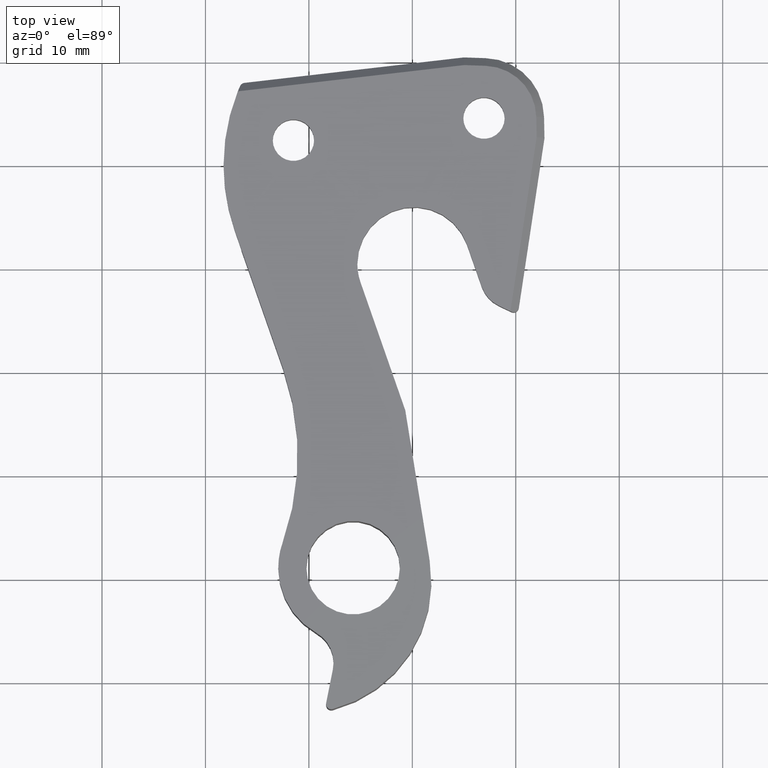
[diagram: clean part render]
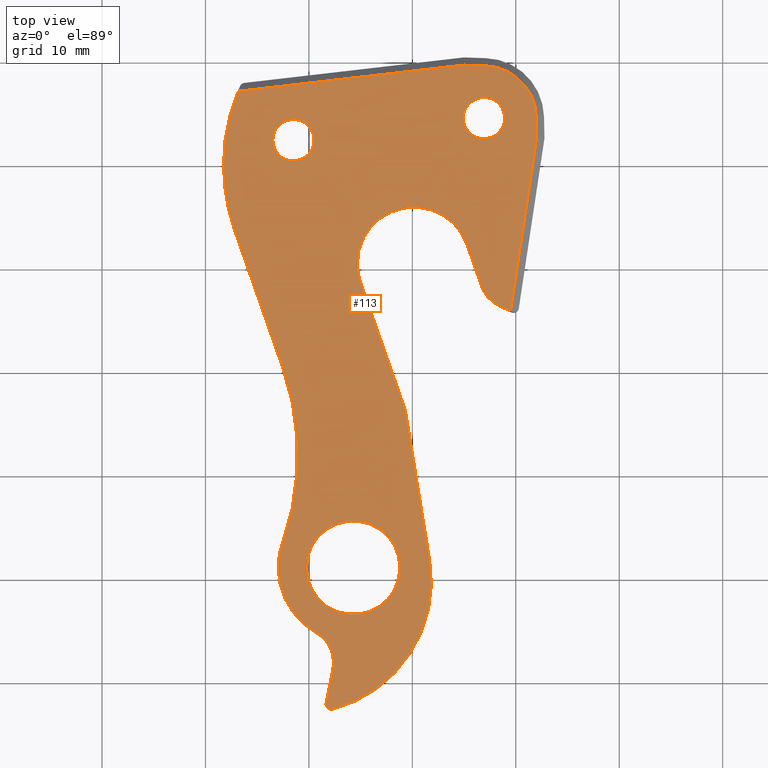
[diagram: same view with one face highlighted and labeled with its STEP entity id]
A machine part, top view. The second image highlights one B-rep face of the part: STEP entity #113.
In plain terms, the highlighted planar face has unit normal (0, 0, 1).
Its self-contained STEP definition (entity closure, byte-faithful):
#5 = EDGE_CURVE ( 'NONE', #978, #334, #567, .T. ) ;
#7 = LINE ( 'NONE', #161, #1128 ) ;
#8 = CARTESIAN_POINT ( 'NONE',  ( 54.94349189461645011, 9.660775438297168449, 7.999999999999401368 ) ) ;
#10 = VERTEX_POINT ( 'NONE', #735 ) ;
#11 = DIRECTION ( 'NONE',  ( 0.0000000000000000000, 0.0000000000000000000, 1.000000000000000000 ) ) ;
#16 = LINE ( 'NONE', #882, #1107 ) ;
#19 = EDGE_CURVE ( 'NONE', #826, #741, #1366, .T. ) ;
#21 = VERTEX_POINT ( 'NONE', #497 ) ;
#23 = ORIENTED_EDGE ( 'NONE', *, *, #19, .F. ) ;
#32 = VERTEX_POINT ( 'NONE', #1280 ) ;
#37 = CARTESIAN_POINT ( 'NONE',  ( 49.31633520000023907, -23.71211920000043705, 7.999999999999401368 ) ) ;
#38 = VERTEX_POINT ( 'NONE', #166 ) ;
#41 = EDGE_CURVE ( 'NONE', #1026, #628, #784, .T. ) ;
#45 = CARTESIAN_POINT ( 'NONE',  ( 49.31633520000023907, -23.71211920000043705, 7.999999999999401368 ) ) ;
#47 = VERTEX_POINT ( 'NONE', #562 ) ;
#49 = EDGE_CURVE ( 'NONE', #47, #415, #1112, .T. ) ;
#55 = EDGE_CURVE ( 'NONE', #663, #1026, #1037, .T. ) ;
#62 = VECTOR ( 'NONE', #538, 999.9999999999998863 ) ;
#66 = EDGE_CURVE ( 'NONE', #21, #514, #858, .T. ) ;
#76 = ORIENTED_EDGE ( 'NONE', *, *, #549, .T. ) ;
#81 = AXIS2_PLACEMENT_3D ( 'NONE', #606, #1166, #1067 ) ;
#85 = DIRECTION ( 'NONE',  ( 1.000000000000000000, 0.0000000000000000000, 0.0000000000000000000 ) ) ;
#89 = CARTESIAN_POINT ( 'NONE',  ( 62.02035325021798684, 2.695675767671724454, 7.999999999999401368 ) ) ;
#99 = CARTESIAN_POINT ( 'NONE',  ( 39.75859460000015133, -38.93256120000002340, 7.999999999999401368 ) ) ;
#103 = DIRECTION ( 'NONE',  ( 0.0000000000000000000, 0.0000000000000000000, -1.000000000000000000 ) ) ;
#105 = CARTESIAN_POINT ( 'NONE',  ( 54.99925209354135092, 9.658936262423850394, 7.999999999999401368 ) ) ;
#109 = DIRECTION ( 'NONE',  ( 0.0000000000000000000, 0.0000000000000000000, 1.000000000000000000 ) ) ;
#113 = ADVANCED_FACE ( 'NONE', ( #723, #466, #439, #165 ), #339, .T. ) ;
#114 = ORIENTED_EDGE ( 'NONE', *, *, #55, .T. ) ;
#115 = CARTESIAN_POINT ( 'NONE',  ( 50.14478160000066254, -9.539351000000232617, 7.999999999999401368 ) ) ;
#117 = CARTESIAN_POINT ( 'NONE',  ( 44.27979460000014456, -38.93256120000002340, 7.999999999999401368 ) ) ;
#127 = DIRECTION ( 'NONE',  ( 0.3301432679945557891, -0.9439308357066608091, 0.0000000000000000000 ) ) ;
#143 = EDGE_LOOP ( 'NONE', ( #586, #454 ) ) ;
#152 = CARTESIAN_POINT ( 'NONE',  ( 37.45633833008918145, -36.51520063727554799, 7.999999999999401368 ) ) ;
#156 = DIRECTION ( 'NONE',  ( 0.0000000000000000000, 0.0000000000000000000, 1.000000000000000000 ) ) ;
#158 = DIRECTION ( 'NONE',  ( 0.0000000000000000000, 0.0000000000000000000, 1.000000000000000000 ) ) ;
#160 = CARTESIAN_POINT ( 'NONE',  ( 32.81810802337655986, -6.289177692555083077, 7.999999999999401368 ) ) ;
#161 = CARTESIAN_POINT ( 'NONE',  ( 58.33232496954143897, -13.59061428668473859, 7.999999999999401368 ) ) ;
#163 = DIRECTION ( 'NONE',  ( -0.01951275333638401860, 0.9998096081040795946, 0.0000000000000000000 ) ) ;
#165 = FACE_BOUND ( 'NONE', #1163, .T. ) ;
#166 = CARTESIAN_POINT ( 'NONE',  ( 33.13109263260192705, 7.121218207959953084, 7.999999999999401368 ) ) ;
#169 = DIRECTION ( 'NONE',  ( 0.0000000000000000000, 0.0000000000000000000, -1.000000000000000000 ) ) ;
#193 = EDGE_CURVE ( 'NONE', #249, #777, #975, .T. ) ;
#198 = CARTESIAN_POINT ( 'NONE',  ( 58.92350420000061462, 4.533722200000052105, 7.999999999999401368 ) ) ;
#217 = CIRCLE ( 'NONE', #81, 0.5079999997624345953 ) ;
#218 = ORIENTED_EDGE ( 'NONE', *, *, #1338, .T. ) ;
#222 = EDGE_CURVE ( 'NONE', #628, #38, #904, .T. ) ;
#225 = EDGE_CURVE ( 'NONE', #514, #47, #7, .T. ) ;
#239 = AXIS2_PLACEMENT_3D ( 'NONE', #809, #491, #1080 ) ;
#242 = VECTOR ( 'NONE', #927, 1000.000000000000000 ) ;
#245 = VERTEX_POINT ( 'NONE', #786 ) ;
#246 = ORIENTED_EDGE ( 'NONE', *, *, #993, .T. ) ;
#247 = CARTESIAN_POINT ( 'NONE',  ( 41.65974184532620939, -52.11375904271323378, 7.999999999999401368 ) ) ;
#249 = VERTEX_POINT ( 'NONE', #463 ) ;
#251 = EDGE_CURVE ( 'NONE', #10, #953, #525, .T. ) ;
#254 = CIRCLE ( 'NONE', #773, 3.301999999984081668 ) ;
#262 = VERTEX_POINT ( 'NONE', #896 ) ;
#279 = CARTESIAN_POINT ( 'NONE',  ( 58.33232496954143897, -13.59061428668473859, 7.999999999999401368 ) ) ;
#284 = EDGE_CURVE ( 'NONE', #828, #960, #217, .T. ) ;
#286 = LINE ( 'NONE', #944, #1326 ) ;
#288 = LINE ( 'NONE', #45, #1327 ) ;
#300 = DIRECTION ( 'NONE',  ( 0.1491675478382895048, 0.9888119349360179333, 0.0000000000000000000 ) ) ;
#304 = CARTESIAN_POINT ( 'NONE',  ( 32.81810802337655986, -6.289177692555083077, 7.999999999999401368 ) ) ;
#315 = CARTESIAN_POINT ( 'NONE',  ( 42.32099969886074575, -48.74949727865347882, 7.999999999999401368 ) ) ;
#323 = EDGE_CURVE ( 'NONE', #334, #745, #703, .T. ) ;
#325 = CIRCLE ( 'NONE', #788, 5.460990160429217255 ) ;
#334 = VERTEX_POINT ( 'NONE', #608 ) ;
#339 = PLANE ( 'NONE',  #1041 ) ;
#341 = AXIS2_PLACEMENT_3D ( 'NONE', #734, #109, #837 ) ;
#347 = EDGE_LOOP ( 'NONE', ( #378, #1348, #76, #665, #909, #218, #588, #541, #1195, #474, #1115, #377, #762, #246, #1113, #931, #776, #426, #445, #457, #675, #1324, #114 ) ) ;
#370 = DIRECTION ( 'NONE',  ( 0.3301402374826382102, -0.9439318956338467181, 0.0000000000000000000 ) ) ;
#377 = ORIENTED_EDGE ( 'NONE', *, *, #982, .T. ) ;
#378 = ORIENTED_EDGE ( 'NONE', *, *, #41, .T. ) ;
#393 = DIRECTION ( 'NONE',  ( 1.000000000000000000, 0.0000000000000000000, 0.0000000000000000000 ) ) ;
#409 = DIRECTION ( 'NONE',  ( 1.000000000000000000, 0.0000000000000000000, 0.0000000000000000000 ) ) ;
#412 = DIRECTION ( 'NONE',  ( -0.3301396699052224215, 0.9439320941438905654, 0.0000000000000000000 ) ) ;
#415 = VERTEX_POINT ( 'NONE', #89 ) ;
#421 = DIRECTION ( 'NONE',  ( 1.000000000000000000, 0.0000000000000000000, 0.0000000000000000000 ) ) ;
#426 = ORIENTED_EDGE ( 'NONE', *, *, #929, .T. ) ;
#429 = DIRECTION ( 'NONE',  ( 0.0000000000000000000, 0.0000000000000000000, 1.000000000000000000 ) ) ;
#436 = CARTESIAN_POINT ( 'NONE',  ( 59.71025209716979276, -10.73020490498482005, 7.999999999999401368 ) ) ;
#439 = FACE_BOUND ( 'NONE', #143, .T. ) ;
#445 = ORIENTED_EDGE ( 'NONE', *, *, #66, .T. ) ;
#454 = ORIENTED_EDGE ( 'NONE', *, *, #957, .F. ) ;
#455 = DIRECTION ( 'NONE',  ( 0.0000000000000000000, 0.0000000000000000000, 1.000000000000000000 ) ) ;
#457 = ORIENTED_EDGE ( 'NONE', *, *, #225, .T. ) ;
#458 = EDGE_CURVE ( 'NONE', #741, #826, #535, .T. ) ;
#459 = DIRECTION ( 'NONE',  ( 0.0000000000000000000, 0.0000000000000000000, 1.000000000000000000 ) ) ;
#460 = CARTESIAN_POINT ( 'NONE',  ( 56.92452420000061863, 4.533722200000052105, 7.999999999999401368 ) ) ;
#463 = CARTESIAN_POINT ( 'NONE',  ( 54.92554420000062265, 4.533722200000052105, 7.999999999999401368 ) ) ;
#466 = FACE_OUTER_BOUND ( 'NONE', #347, .T. ) ;
#474 = ORIENTED_EDGE ( 'NONE', *, *, #709, .T. ) ;
#483 = AXIS2_PLACEMENT_3D ( 'NONE', #510, #11, #85 ) ;
#486 = VERTEX_POINT ( 'NONE', #315 ) ;
#491 = DIRECTION ( 'NONE',  ( 0.0000000000000000000, 0.0000000000000000000, 1.000000000000000000 ) ) ;
#493 = DIRECTION ( 'NONE',  ( -0.9994564822704936624, 0.03296574051178456644, 0.0000000000000000000 ) ) ;
#497 = CARTESIAN_POINT ( 'NONE',  ( 56.71327169380769817, -11.77840978087316159, 7.999999999999401368 ) ) ;
#501 = DIRECTION ( 'NONE',  ( 1.000000000000000000, 0.0000000000000000000, 0.0000000000000000000 ) ) ;
#504 = VECTOR ( 'NONE', #493, 1000.000000000000114 ) ;
#510 = CARTESIAN_POINT ( 'NONE',  ( 50.80001063516170490, -6.168522944174914535E-06, 7.999999999999401368 ) ) ;
#514 = VERTEX_POINT ( 'NONE', #279 ) ;
#516 = AXIS2_PLACEMENT_3D ( 'NONE', #722, #429, #409 ) ;
#525 = CIRCLE ( 'NONE', #641, 1.998979999999997315 ) ;
#533 = VECTOR ( 'NONE', #370, 1000.000000000000000 ) ;
#534 = CIRCLE ( 'NONE', #908, 0.5079999997624345953 ) ;
#535 = CIRCLE ( 'NONE', #693, 4.521199999999995889 ) ;
#538 = DIRECTION ( 'NONE',  ( -0.9933338861425216049, -0.1152726795081823186, 0.0000000000000000000 ) ) ;
#540 = AXIS2_PLACEMENT_3D ( 'NONE', #713, #1365, #501 ) ;
#541 = ORIENTED_EDGE ( 'NONE', *, *, #323, .T. ) ;
#549 = EDGE_CURVE ( 'NONE', #38, #32, #1259, .T. ) ;
#562 = CARTESIAN_POINT ( 'NONE',  ( 59.48007216750249171, -14.14351136842520695, 7.999999999999401368 ) ) ;
#566 = DIRECTION ( 'NONE',  ( 1.000000000000000000, 0.0000000000000000000, 0.0000000000000000000 ) ) ;
#567 = CIRCLE ( 'NONE', #787, 7.239000000005976432 ) ;
#573 = VERTEX_POINT ( 'NONE', #714 ) ;
#576 = AXIS2_PLACEMENT_3D ( 'NONE', #117, #1249, #421 ) ;
#586 = ORIENTED_EDGE ( 'NONE', *, *, #193, .F. ) ;
#588 = ORIENTED_EDGE ( 'NONE', *, *, #5, .T. ) ;
#593 = CARTESIAN_POINT ( 'NONE',  ( 33.81813699265040185, 7.444571160082288586, 7.999999999999401368 ) ) ;
#605 = VERTEX_POINT ( 'NONE', #640 ) ;
#606 = CARTESIAN_POINT ( 'NONE',  ( 42.16774184508864920, -52.11375904271323378, 7.999999999999401368 ) ) ;
#608 = CARTESIAN_POINT ( 'NONE',  ( 37.04079426229282745, -38.93254838662481632, 7.999999999999401368 ) ) ;
#609 = DIRECTION ( 'NONE',  ( 0.0000000000000000000, 0.0000000000000000000, -1.000000000000000000 ) ) ;
#611 = DIRECTION ( 'NONE',  ( 0.0000000000000000000, 0.0000000000000000000, 1.000000000000000000 ) ) ;
#628 = VERTEX_POINT ( 'NONE', #105 ) ;
#640 = CARTESIAN_POINT ( 'NONE',  ( 44.68379143957144350, -9.539351000000232617, 7.999999999999401368 ) ) ;
#641 = AXIS2_PLACEMENT_3D ( 'NONE', #781, #158, #566 ) ;
#645 = CARTESIAN_POINT ( 'NONE',  ( 37.49025783987821825, -19.64771667769097618, 7.999999999999401368 ) ) ;
#647 = CARTESIAN_POINT ( 'NONE',  ( 13.51438769079326896, -28.03327870974691294, 7.999999999999401368 ) ) ;
#649 = DIRECTION ( 'NONE',  ( 0.0000000000000000000, 0.0000000000000000000, 1.000000000000000000 ) ) ;
#663 = VERTEX_POINT ( 'NONE', #1069 ) ;
#665 = ORIENTED_EDGE ( 'NONE', *, *, #810, .T. ) ;
#675 = ORIENTED_EDGE ( 'NONE', *, *, #49, .T. ) ;
#683 = DIRECTION ( 'NONE',  ( 0.0000000000000000000, 0.0000000000000000000, 1.000000000000000000 ) ) ;
#693 = AXIS2_PLACEMENT_3D ( 'NONE', #1038, #611, #393 ) ;
#703 = CIRCLE ( 'NONE', #540, 7.239000000005976432 ) ;
#709 = EDGE_CURVE ( 'NONE', #486, #828, #1158, .T. ) ;
#713 = CARTESIAN_POINT ( 'NONE',  ( 44.27979426229880744, -38.93254838662481632, 7.999999999999401368 ) ) ;
#714 = CARTESIAN_POINT ( 'NONE',  ( 55.29957860591557051, -7.736441861937277231, 7.999999999999401368 ) ) ;
#716 = CARTESIAN_POINT ( 'NONE',  ( 41.66956189435859415, -52.01435714912340558, 7.999999999999401368 ) ) ;
#717 = VECTOR ( 'NONE', #163, 1000.000000000000227 ) ;
#719 = AXIS2_PLACEMENT_3D ( 'NONE', #1101, #455, #1207 ) ;
#722 = CARTESIAN_POINT ( 'NONE',  ( 50.80001063516170490, -6.168522944174914535E-06, 7.999999999999401368 ) ) ;
#723 = FACE_BOUND ( 'NONE', #1179, .T. ) ;
#734 = CARTESIAN_POINT ( 'NONE',  ( 38.50495219999980634, 2.396210599999984758, 7.999999999999401368 ) ) ;
#735 = CARTESIAN_POINT ( 'NONE',  ( 36.50597219999980325, 2.396210599999984758, 7.999999999999401368 ) ) ;
#736 = DIRECTION ( 'NONE',  ( 1.000000000000000000, 0.0000000000000000000, 0.0000000000000000000 ) ) ;
#741 = VERTEX_POINT ( 'NONE', #854 ) ;
#745 = VERTEX_POINT ( 'NONE', #833 ) ;
#751 = CIRCLE ( 'NONE', #341, 1.998979999999997315 ) ;
#755 = AXIS2_PLACEMENT_3D ( 'NONE', #460, #1103, #1170 ) ;
#762 = ORIENTED_EDGE ( 'NONE', *, *, #968, .T. ) ;
#773 = AXIS2_PLACEMENT_3D ( 'NONE', #1256, #609, #1368 ) ;
#776 = ORIENTED_EDGE ( 'NONE', *, *, #1299, .T. ) ;
#777 = VERTEX_POINT ( 'NONE', #198 ) ;
#779 = CARTESIAN_POINT ( 'NONE',  ( 42.16774184508864920, -52.11375904271323378, 7.999999999999401368 ) ) ;
#781 = CARTESIAN_POINT ( 'NONE',  ( 38.50495219999980634, 2.396210599999984758, 7.999999999999401368 ) ) ;
#782 = CIRCLE ( 'NONE', #1302, 12.70000000006875318 ) ;
#784 = LINE ( 'NONE', #8, #504 ) ;
#786 = CARTESIAN_POINT ( 'NONE',  ( 44.98997772176898025, -11.34224048892564518, 7.999999999999401368 ) ) ;
#787 = AXIS2_PLACEMENT_3D ( 'NONE', #1264, #1050, #1140 ) ;
#788 = AXIS2_PLACEMENT_3D ( 'NONE', #115, #840, #736 ) ;
#809 = CARTESIAN_POINT ( 'NONE',  ( 56.92453809352908678, 4.533702128338683579, 7.999999999999401368 ) ) ;
#810 = EDGE_CURVE ( 'NONE', #32, #1029, #984, .T. ) ;
#826 = VERTEX_POINT ( 'NONE', #99 ) ;
#828 = VERTEX_POINT ( 'NONE', #716 ) ;
#832 = DIRECTION ( 'NONE',  ( 1.000000000000000000, 0.0000000000000000000, 0.0000000000000000000 ) ) ;
#833 = CARTESIAN_POINT ( 'NONE',  ( 40.71079472076326056, -45.23059278728139532, 7.999999999999401368 ) ) ;
#837 = DIRECTION ( 'NONE',  ( 1.000000000000000000, 0.0000000000000000000, 0.0000000000000000000 ) ) ;
#840 = DIRECTION ( 'NONE',  ( 0.0000000000000000000, 0.0000000000000000000, -1.000000000000000000 ) ) ;
#843 = VERTEX_POINT ( 'NONE', #1090 ) ;
#844 = CARTESIAN_POINT ( 'NONE',  ( 62.02984284879870103, 2.758581060878706026, 7.999999999999401368 ) ) ;
#854 = CARTESIAN_POINT ( 'NONE',  ( 48.80099460000013778, -38.93256120000002340, 7.999999999999401368 ) ) ;
#858 = CIRCLE ( 'NONE', #1260, 3.174999999995084643 ) ;
#864 = DIRECTION ( 'NONE',  ( 1.000000000000000000, 0.0000000000000000000, 0.0000000000000000000 ) ) ;
#865 = AXIS2_PLACEMENT_3D ( 'NONE', #647, #103, #832 ) ;
#876 = ORIENTED_EDGE ( 'NONE', *, *, #458, .F. ) ;
#880 = DIRECTION ( 'NONE',  ( -0.1599573333657308416, 0.9871239291510079950, 0.0000000000000000000 ) ) ;
#882 = CARTESIAN_POINT ( 'NONE',  ( 56.71327169380769817, -11.77840978087316159, 7.999999999999401368 ) ) ;
#892 = DIRECTION ( 'NONE',  ( 1.000000000000000000, 0.0000000000000000000, 0.0000000000000000000 ) ) ;
#896 = CARTESIAN_POINT ( 'NONE',  ( 42.29392823100752707, -52.60583728414248839, 7.999999999999401368 ) ) ;
#904 = LINE ( 'NONE', #994, #62 ) ;
#907 = EDGE_CURVE ( 'NONE', #245, #605, #1142, .T. ) ;
#908 = AXIS2_PLACEMENT_3D ( 'NONE', #779, #156, #892 ) ;
#909 = ORIENTED_EDGE ( 'NONE', *, *, #1301, .T. ) ;
#916 = CARTESIAN_POINT ( 'NONE',  ( 42.32099969886074575, -48.74949727865347882, 7.999999999999401368 ) ) ;
#927 = DIRECTION ( 'NONE',  ( -0.1956730189229047845, -0.9806691948183121621, 0.0000000000000000000 ) ) ;
#929 = EDGE_CURVE ( 'NONE', #573, #21, #16, .T. ) ;
#930 = VERTEX_POINT ( 'NONE', #645 ) ;
#931 = ORIENTED_EDGE ( 'NONE', *, *, #907, .T. ) ;
#944 = CARTESIAN_POINT ( 'NONE',  ( 49.31633520000023907, -23.71211920000043705, 7.999999999999401368 ) ) ;
#953 = VERTEX_POINT ( 'NONE', #983 ) ;
#955 = CARTESIAN_POINT ( 'NONE',  ( 57.09131111604582998, 9.589932482774985445, 7.999999999999401368 ) ) ;
#957 = EDGE_CURVE ( 'NONE', #777, #249, #1362, .T. ) ;
#960 = VERTEX_POINT ( 'NONE', #247 ) ;
#968 = EDGE_CURVE ( 'NONE', #262, #843, #782, .T. ) ;
#975 = CIRCLE ( 'NONE', #755, 1.998979999999997315 ) ;
#978 = VERTEX_POINT ( 'NONE', #152 ) ;
#982 = EDGE_CURVE ( 'NONE', #960, #262, #534, .T. ) ;
#983 = CARTESIAN_POINT ( 'NONE',  ( 40.50393219999980232, 2.396210599999985202, 7.999999999999401368 ) ) ;
#984 = CIRCLE ( 'NONE', #483, 19.05000000003659366 ) ;
#990 = CARTESIAN_POINT ( 'NONE',  ( 50.14478160000066254, -9.539351000000232617, 7.999999999999401368 ) ) ;
#992 = CARTESIAN_POINT ( 'NONE',  ( 61.98255490452711314, 4.632416756574043504, 7.999999999999401368 ) ) ;
#993 = EDGE_CURVE ( 'NONE', #843, #1197, #288, .T. ) ;
#994 = CARTESIAN_POINT ( 'NONE',  ( 33.84603298111890979, 7.204184359434058216, 7.999999999999401368 ) ) ;
#998 = LINE ( 'NONE', #992, #717 ) ;
#1026 = VERTEX_POINT ( 'NONE', #955 ) ;
#1029 = VERTEX_POINT ( 'NONE', #304 ) ;
#1030 = EDGE_CURVE ( 'NONE', #415, #663, #998, .T. ) ;
#1037 = CIRCLE ( 'NONE', #239, 5.058979999778848047 ) ;
#1038 = CARTESIAN_POINT ( 'NONE',  ( 44.27979460000014456, -38.93256120000002340, 7.999999999999401368 ) ) ;
#1041 = AXIS2_PLACEMENT_3D ( 'NONE', #593, #683, #1336 ) ;
#1050 = DIRECTION ( 'NONE',  ( 0.0000000000000000000, 0.0000000000000000000, 1.000000000000000000 ) ) ;
#1067 = DIRECTION ( 'NONE',  ( 1.000000000000000000, 0.0000000000000000000, 0.0000000000000000000 ) ) ;
#1069 = CARTESIAN_POINT ( 'NONE',  ( 61.98255490452500283, 4.632416756655883816, 7.999999999999401368 ) ) ;
#1080 = DIRECTION ( 'NONE',  ( 1.000000000000000000, 0.0000000000000000000, 0.0000000000000000000 ) ) ;
#1090 = CARTESIAN_POINT ( 'NONE',  ( 51.67574248126681624, -38.27242310695339000, 7.999999999999401368 ) ) ;
#1098 = DIRECTION ( 'NONE',  ( 1.000000000000000000, 0.0000000000000000000, 0.0000000000000000000 ) ) ;
#1101 = CARTESIAN_POINT ( 'NONE',  ( 56.92452420000061863, 4.533722200000052105, 7.999999999999401368 ) ) ;
#1103 = DIRECTION ( 'NONE',  ( 0.0000000000000000000, 0.0000000000000000000, 1.000000000000000000 ) ) ;
#1104 = CARTESIAN_POINT ( 'NONE',  ( 39.13926858105875084, -40.30388124070241673, 7.999999999999401368 ) ) ;
#1105 = LINE ( 'NONE', #160, #533 ) ;
#1107 = VECTOR ( 'NONE', #127, 999.9999999999998863 ) ;
#1112 = LINE ( 'NONE', #844, #1330 ) ;
#1113 = ORIENTED_EDGE ( 'NONE', *, *, #1361, .T. ) ;
#1115 = ORIENTED_EDGE ( 'NONE', *, *, #284, .T. ) ;
#1125 = AXIS2_PLACEMENT_3D ( 'NONE', #990, #169, #1098 ) ;
#1128 = VECTOR ( 'NONE', #1220, 1000.000000000000114 ) ;
#1140 = DIRECTION ( 'NONE',  ( 1.000000000000000000, 0.0000000000000000000, 0.0000000000000000000 ) ) ;
#1142 = CIRCLE ( 'NONE', #1125, 5.460990160429217255 ) ;
#1145 = ORIENTED_EDGE ( 'NONE', *, *, #251, .F. ) ;
#1158 = LINE ( 'NONE', #916, #242 ) ;
#1163 = EDGE_LOOP ( 'NONE', ( #23, #876 ) ) ;
#1166 = DIRECTION ( 'NONE',  ( 0.0000000000000000000, 0.0000000000000000000, 1.000000000000000000 ) ) ;
#1170 = DIRECTION ( 'NONE',  ( 1.000000000000000000, 0.0000000000000000000, 0.0000000000000000000 ) ) ;
#1179 = EDGE_LOOP ( 'NONE', ( #1145, #1232 ) ) ;
#1195 = ORIENTED_EDGE ( 'NONE', *, *, #1325, .T. ) ;
#1197 = VERTEX_POINT ( 'NONE', #37 ) ;
#1207 = DIRECTION ( 'NONE',  ( 1.000000000000000000, 0.0000000000000000000, 0.0000000000000000000 ) ) ;
#1213 = DIRECTION ( 'NONE',  ( 1.000000000000000000, 0.0000000000000000000, 0.0000000000000000000 ) ) ;
#1220 = DIRECTION ( 'NONE',  ( 0.9009163406947010566, -0.4339927961029644288, 0.0000000000000000000 ) ) ;
#1232 = ORIENTED_EDGE ( 'NONE', *, *, #1375, .F. ) ;
#1249 = DIRECTION ( 'NONE',  ( 0.0000000000000000000, 0.0000000000000000000, 1.000000000000000000 ) ) ;
#1256 = CARTESIAN_POINT ( 'NONE',  ( 39.08283001761651576, -48.10338497001998093, 7.999999999999401368 ) ) ;
#1259 = CIRCLE ( 'NONE', #516, 19.05000000003659366 ) ;
#1260 = AXIS2_PLACEMENT_3D ( 'NONE', #436, #649, #864 ) ;
#1264 = CARTESIAN_POINT ( 'NONE',  ( 44.27979426229880744, -38.93254838662481632, 7.999999999999401368 ) ) ;
#1280 = CARTESIAN_POINT ( 'NONE',  ( 31.75001063512511479, -6.168522944174914535E-06, 7.999999999999401368 ) ) ;
#1299 = EDGE_CURVE ( 'NONE', #605, #573, #325, .T. ) ;
#1301 = EDGE_CURVE ( 'NONE', #1029, #930, #1105, .T. ) ;
#1302 = AXIS2_PLACEMENT_3D ( 'NONE', #1104, #459, #1213 ) ;
#1324 = ORIENTED_EDGE ( 'NONE', *, *, #1030, .T. ) ;
#1325 = EDGE_CURVE ( 'NONE', #745, #486, #254, .T. ) ;
#1326 = VECTOR ( 'NONE', #412, 1000.000000000000114 ) ;
#1327 = VECTOR ( 'NONE', #880, 1000.000000000000227 ) ;
#1330 = VECTOR ( 'NONE', #300, 1000.000000000000000 ) ;
#1336 = DIRECTION ( 'NONE',  ( 1.000000000000000000, 0.0000000000000000000, 0.0000000000000000000 ) ) ;
#1338 = EDGE_CURVE ( 'NONE', #930, #978, #1360, .T. ) ;
#1348 = ORIENTED_EDGE ( 'NONE', *, *, #222, .T. ) ;
#1360 = CIRCLE ( 'NONE', #865, 25.39999999998429914 ) ;
#1361 = EDGE_CURVE ( 'NONE', #1197, #245, #286, .T. ) ;
#1362 = CIRCLE ( 'NONE', #719, 1.998979999999997315 ) ;
#1365 = DIRECTION ( 'NONE',  ( 0.0000000000000000000, 0.0000000000000000000, 1.000000000000000000 ) ) ;
#1366 = CIRCLE ( 'NONE', #576, 4.521199999999995889 ) ;
#1368 = DIRECTION ( 'NONE',  ( 1.000000000000000000, 0.0000000000000000000, 0.0000000000000000000 ) ) ;
#1375 = EDGE_CURVE ( 'NONE', #953, #10, #751, .T. ) ;